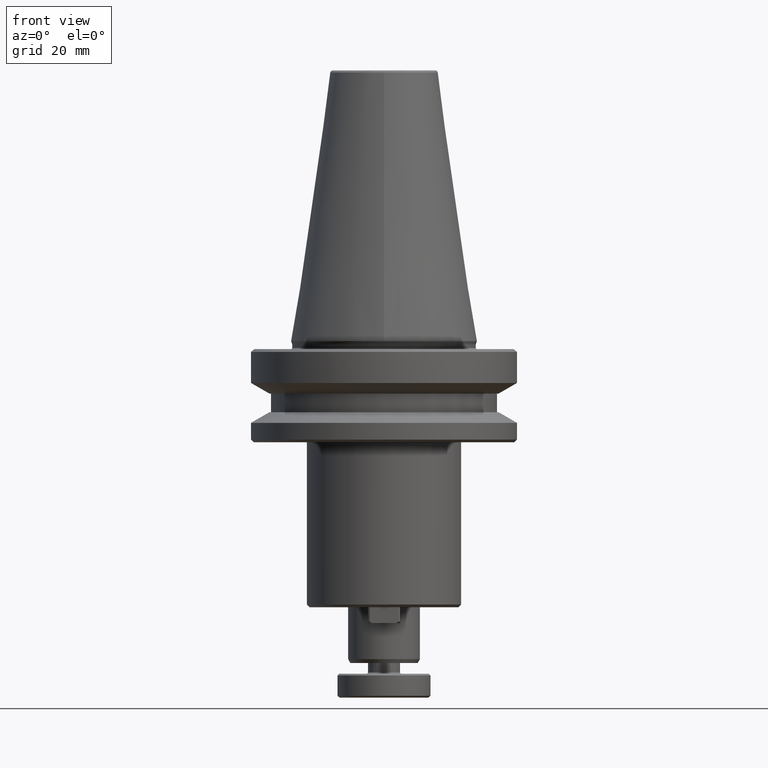
[diagram: clean part render]
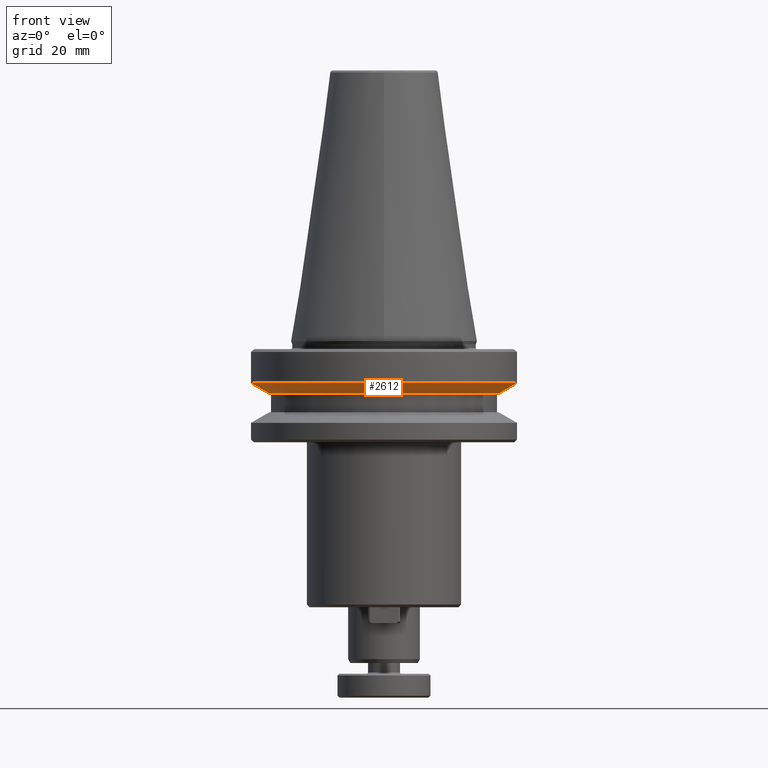
[diagram: same view with one face highlighted and labeled with its STEP entity id]
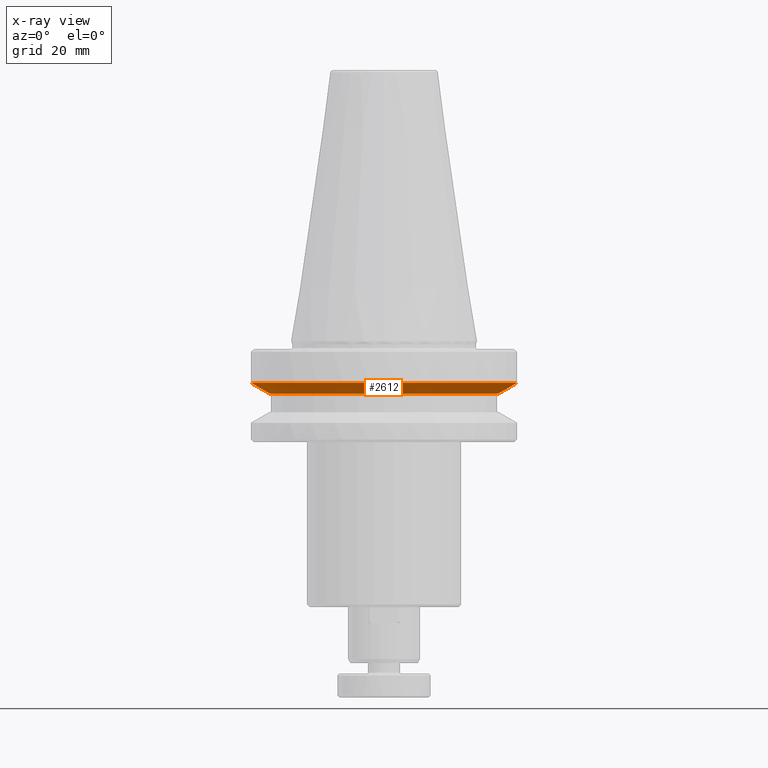
[diagram: x-ray of the same camera — body ghosted, the highlighted face saturated]
A machine part, front view. The second image highlights one B-rep face of the part: STEP entity #2612.
The next image is the same camera in x-ray: the body ghosted, the highlighted face saturated — about 0% of this face is hidden behind the body in this view.
In plain terms, the highlighted conical surface has half-angle 60 deg.
Its self-contained STEP definition (entity closure, byte-faithful):
#37 = DIRECTION ( 'NONE',  ( 1.000000000000000000, 0.0000000000000000000, 0.0000000000000000000 ) ) ;
#39 = DIRECTION ( 'NONE',  ( 0.0000000000000000000, 0.0000000000000000000, 1.000000000000000000 ) ) ;
#40 = CARTESIAN_POINT ( 'NONE',  ( 0.0000000000000000000, 0.0000000000000000000, -15.70022000322675400 ) ) ;
#57 = AXIS2_PLACEMENT_3D ( 'NONE', #2745, #2744, #2741 ) ;
#264 = ORIENTED_EDGE ( 'NONE', *, *, #1862, .F. ) ;
#336 = VERTEX_POINT ( 'NONE', #1550 ) ;
#360 = EDGE_CURVE ( 'NONE', #336, #2169, #1877, .T. ) ;
#487 = VERTEX_POINT ( 'NONE', #1766 ) ;
#539 = LINE ( 'NONE', #2438, #2463 ) ;
#788 = VERTEX_POINT ( 'NONE', #1121 ) ;
#893 = CIRCLE ( 'NONE', #57, 43.07217782649103600 ) ;
#905 = ORIENTED_EDGE ( 'NONE', *, *, #2238, .T. ) ;
#1121 = CARTESIAN_POINT ( 'NONE',  ( 50.00000000000000000, 0.0000000000000000000, -15.70022000322675400 ) ) ;
#1218 = VECTOR ( 'NONE', #1690, 1000.000000000000000 ) ;
#1260 = EDGE_LOOP ( 'NONE', ( #2740, #2539, #905, #264 ) ) ;
#1503 = AXIS2_PLACEMENT_3D ( 'NONE', #40, #39, #37 ) ;
#1550 = CARTESIAN_POINT ( 'NONE',  ( -43.07217782649103600, 5.699027233244276000E-015, -19.70000000000001000 ) ) ;
#1690 = DIRECTION ( 'NONE',  ( -0.8660254037844388200, 1.060575238724907200E-016, 0.4999999999999997200 ) ) ;
#1766 = CARTESIAN_POINT ( 'NONE',  ( 43.07217782649103600, 0.0000000000000000000, -19.70000000000001000 ) ) ;
#1862 = EDGE_CURVE ( 'NONE', #2169, #788, #2431, .T. ) ;
#1877 = LINE ( 'NONE', #2269, #1218 ) ;
#1893 = DIRECTION ( 'NONE',  ( 1.000000000000000000, 0.0000000000000000000, 0.0000000000000000000 ) ) ;
#1896 = DIRECTION ( 'NONE',  ( 0.0000000000000000000, 0.0000000000000000000, 1.000000000000000000 ) ) ;
#1900 = CARTESIAN_POINT ( 'NONE',  ( 0.0000000000000000000, 0.0000000000000000000, -15.70022000322674700 ) ) ;
#2068 = CONICAL_SURFACE ( 'NONE', #2577, 50.00000000000001400, 1.047197551196598100 ) ;
#2114 = EDGE_CURVE ( 'NONE', #336, #487, #893, .T. ) ;
#2169 = VERTEX_POINT ( 'NONE', #2605 ) ;
#2202 = FACE_OUTER_BOUND ( 'NONE', #1260, .T. ) ;
#2238 = EDGE_CURVE ( 'NONE', #487, #788, #539, .T. ) ;
#2269 = CARTESIAN_POINT ( 'NONE',  ( -50.00000000000001400, 6.123233995736767700E-015, -15.70022000322674700 ) ) ;
#2431 = CIRCLE ( 'NONE', #1503, 50.00000000000000000 ) ;
#2438 = CARTESIAN_POINT ( 'NONE',  ( 50.00000000000001400, 0.0000000000000000000, -15.70022000322674700 ) ) ;
#2463 = VECTOR ( 'NONE', #2538, 1000.000000000000000 ) ;
#2538 = DIRECTION ( 'NONE',  ( 0.8660254037844388200, 0.0000000000000000000, 0.4999999999999997200 ) ) ;
#2539 = ORIENTED_EDGE ( 'NONE', *, *, #2114, .T. ) ;
#2577 = AXIS2_PLACEMENT_3D ( 'NONE', #1900, #1896, #1893 ) ;
#2605 = CARTESIAN_POINT ( 'NONE',  ( -50.00000000000000000, 6.123233995736766100E-015, -15.70022000322675400 ) ) ;
#2612 = ADVANCED_FACE ( 'NONE', ( #2202 ), #2068, .T. ) ;
#2740 = ORIENTED_EDGE ( 'NONE', *, *, #360, .F. ) ;
#2741 = DIRECTION ( 'NONE',  ( 1.000000000000000000, 0.0000000000000000000, 0.0000000000000000000 ) ) ;
#2744 = DIRECTION ( 'NONE',  ( 0.0000000000000000000, 0.0000000000000000000, 1.000000000000000000 ) ) ;
#2745 = CARTESIAN_POINT ( 'NONE',  ( 0.0000000000000000000, 0.0000000000000000000, -19.70000000000001000 ) ) ;